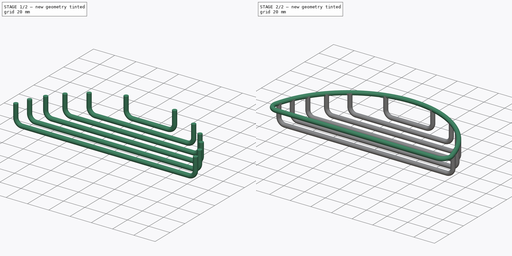
[diagram: build sequence overview — one tinted view per stage of 2, left to right]
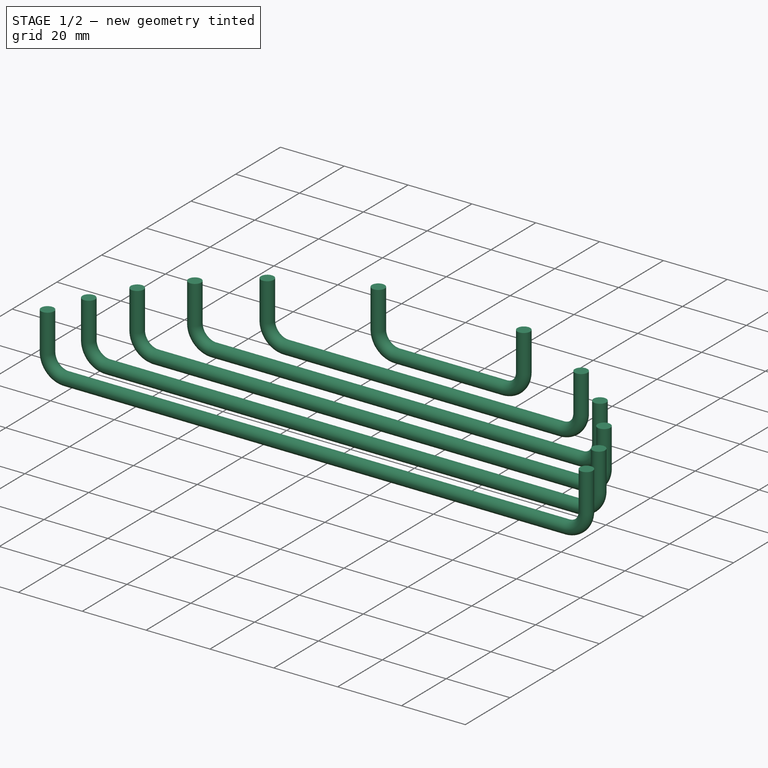
[diagram: stage 1 of 2 — iso view after this stage's code; geometry added in this stage tinted green]
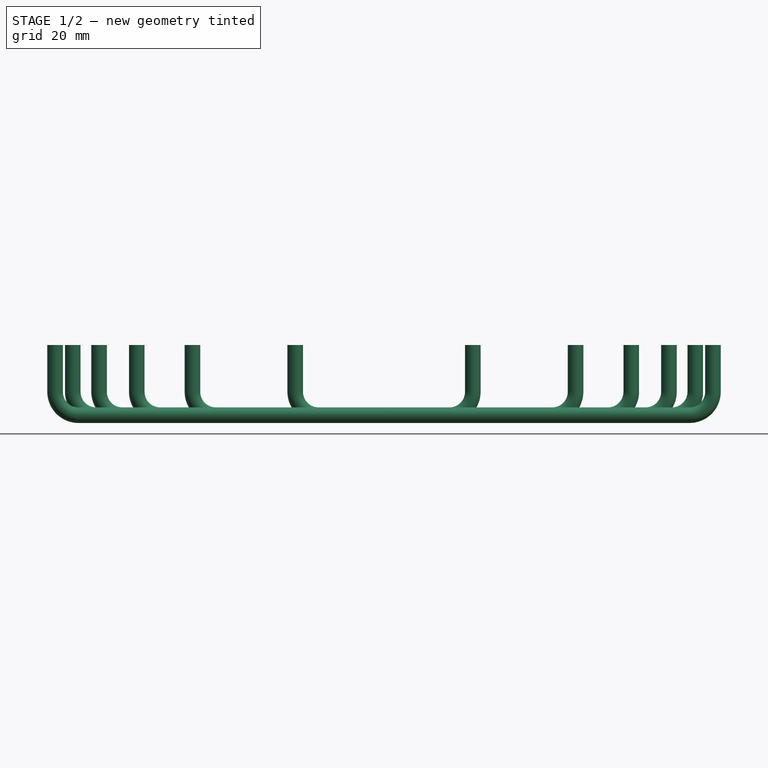
[diagram: stage 1 of 2 — front view after this stage's code; geometry added in this stage tinted green]
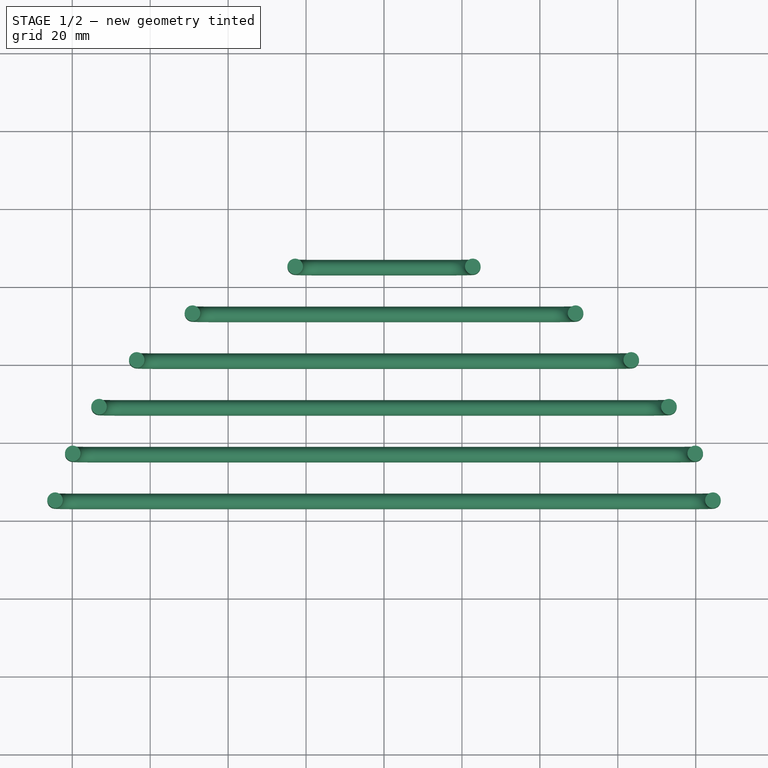
[diagram: stage 1 of 2 — top view after this stage's code; geometry added in this stage tinted green]
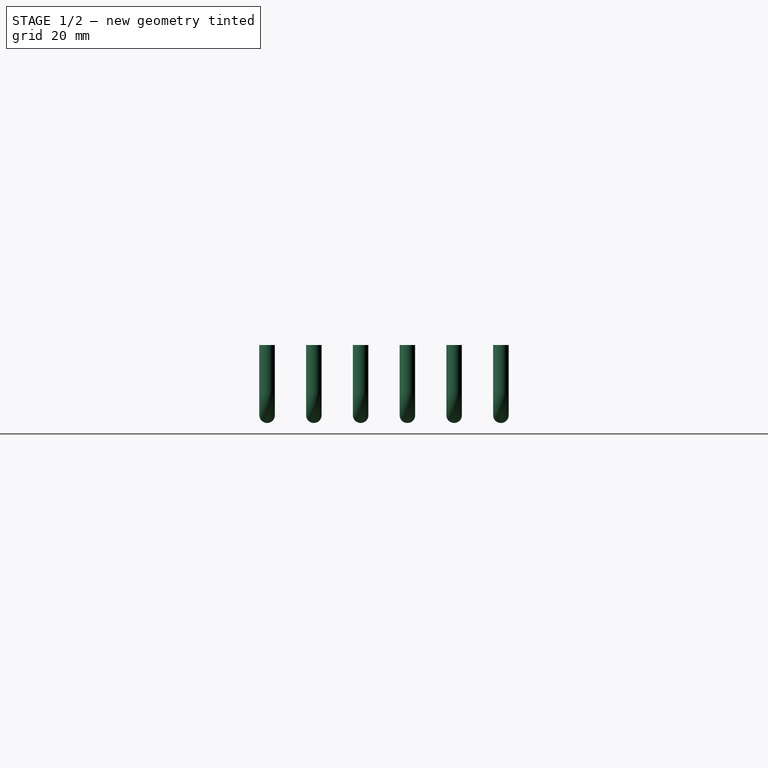
[diagram: stage 1 of 2 — right view after this stage's code; geometry added in this stage tinted green]
FCSTD DOCUMENT  (FreeCAD 1.1R42340 (Git))
Label: 24WC-30-Soapt_Holder
License: Creative Commons Attribution-NonCommercial-ShareAlike 4.0
LicenseURL: https://creativecommons.org/licenses/by-nc-sa/4.0/
objects: Sketcher::SketchObject×5, PartDesign::AdditivePipe×2, App::TextDocument×1, Part::FeaturePython×1, App::Part×1, App::Point×1
note: 17 computed .brp shape members not serialized (recipe doc carries the construction recipe); baked Part::Feature solids carry a one-line shape summary decoded from their .brp

FEATURE [Sketcher::SketchObject] Sketch002
  ArcFitTolerance = 1e-06
  ExternalGeometry = -> [Sketch]
  ExternalTypes = [0,0]
  FullyConstrained = true
  MakeInternals = false
  MapMode = 5
  sketch-geometry (1):
    g0: LineSegment StartX=-76.4871 StartY=23.57 StartZ=0 EndX=76.4871 EndY=23.57 EndZ=0
  constraints (4):
    c: PointOnObject(g0,g-3)
    c: PointOnObject(g0,g-3)
    c: Horizontal(g0)
    c: Distance(g0,g-4) = 31.57  'X'
FEATURE [Sketcher::SketchObject] Sketch003  label="Path"
  ArcFitTolerance = 1e-06
  ExternalGeometry = -> [Sketch002]
  ExternalTypes = [0]
  FullyConstrained = true
  MakeInternals = false
  MapMode = 5
  Placement = pos=(0,23.57,0) rot=(0,0.707107,0.707107;3.14159rad)
  sketch-geometry (13):
    g0: LineSegment StartX=-76.4871 StartY=0 StartZ=0 EndX=-76.4871 EndY=-12 EndZ=0
    g1: ArcOfCircle CenterX=-70.4871 CenterY=-12 CenterZ=0 NormalX=0 NormalY=0 NormalZ=1 AngleXU=0 Radius=6 StartAngle=3.14159 EndAngle=4.71239
    g2: LineSegment StartX=-70.4871 StartY=-18 StartZ=0 EndX=70.4871 EndY=-18 EndZ=0
    g3: ArcOfCircle CenterX=70.4871 CenterY=-12 CenterZ=0 NormalX=0 NormalY=0 NormalZ=1 AngleXU=0 Radius=6 StartAngle=4.71239 EndAngle=6.28319
    g4: LineSegment StartX=76.4871 StartY=-12 StartZ=0 EndX=76.4871 EndY=0 EndZ=0
    g5: LineSegment [constr] StartX=76.4871 StartY=2 StartZ=0 EndX=-76.4871 EndY=2 EndZ=0
    g6: ArcOfCircle [constr] CenterX=-76.4871 CenterY=0 CenterZ=0 NormalX=0 NormalY=0 NormalZ=-1 AngleXU=-1.5708 Radius=2 StartAngle=1.5708 EndAngle=3.14159
    g7: LineSegment [constr] StartX=-78.4871 StartY=0 StartZ=0 EndX=-78.4871 EndY=-12 EndZ=0
    g8: ArcOfCircle [constr] CenterX=-70.4871 CenterY=-12 CenterZ=0 NormalX=0 NormalY=0 NormalZ=1 AngleXU=0 Radius=8 StartAngle=3.14159 EndAngle=4.71239
    g9: LineSegment [constr] StartX=-70.4871 StartY=-20 StartZ=0 EndX=70.4871 EndY=-20 EndZ=0
    g10: ArcOfCircle [constr] CenterX=70.4871 CenterY=-12 CenterZ=0 NormalX=0 NormalY=0 NormalZ=1 AngleXU=0 Radius=8 StartAngle=4.71239 EndAngle=6.28319
    g11: LineSegment [constr] StartX=78.4871 StartY=-12 StartZ=0 EndX=78.4871 EndY=0 EndZ=0
    g12: ArcOfCircle [constr] CenterX=76.4871 CenterY=0 CenterZ=0 NormalX=0 NormalY=0 NormalZ=-1 AngleXU=0 Radius=2 StartAngle=1.5708 EndAngle=3.14159
  constraints (28):
    c: Coincident(g-3,g0)
    c: Vertical(g0)
    c: Tangent(g0,g1) = -1.5708
    c: Tangent(g1,g2) = -1.5708
    c: Tangent(g2,g3) = -1.5708
    c: Tangent(g3,g4) = -1.5708
    c: Horizontal(g2)
    c: Vertical(g4)
    c: Coincident(g4,g-3)
    c: Equal(g3,g1)
    c: Radius(g1) = 6
    c: Tangent(g5,g6) = -1.5708
    c: Tangent(g5,g12) = -1.5708
    c: Tangent(g6,g7) = -1.5708
    c: Tangent(g7,g8) = -1.5708
    c: Tangent(g8,g9) = -1.5708
    c: Tangent(g9,g10) = -1.5708
    c: Tangent(g10,g11) = -1.5708
    c: Tangent(g11,g12) = -1.5708
    c: Coincident(g12,g4)
    c: Parallel(g5,g-3)
    c: Coincident(g6,g0)
    c: Parallel(g7,g0)
    c: Coincident(g8,g1)
    c: Parallel(g9,g2)
    c: Coincident(g10,g3)
    c: Distance(g11,g4) = 2
    c: DistanceY(g9,g5) = 22
FEATURE [Sketcher::SketchObject] Sketch004  label="Lower Profile"
  ArcFitTolerance = 1e-06
  ExternalGeometry = -> [Sketch002]
  ExternalTypes = [0]
  FullyConstrained = true
  MakeInternals = false
  MapMode = 5
  sketch-geometry (1):
    g0: Circle CenterX=-76.4871 CenterY=23.57 CenterZ=0 NormalX=0 NormalY=0 NormalZ=1 AngleXU=0 Radius=2
  constraints (2):
    c: Diameter(g0) = 4
    c: Coincident(g0,g-3)
FEATURE [PartDesign::AdditivePipe] AdditivePipe001  label="Lower Wire"
  AuxiliaryCurvilinear = true
  AuxiliarySpineTangent = false
  Binormal = (0,0,0)
  Mode = 0
  Profile = -> Sketch004
  Refine = true
  Spine = -> Sketch003
  SpineTangent = false
  Suppressed = false
  Transformation = 0
  Transition = 0
FEATURE [App::TextDocument] Text_document  label="README"
  Text = https://www.youtube.com/watch?v=GK-3fxuuU_o&t=207s\n\n7800 kg/m3\n\n.0912 kg but should be \n.129\n\nAs far as I know, there is no easy way in FreeCad to make a series of features by varying a dimension in a sketch, like in SW.\n\nI use Lattice2 Paraseries. \nIt's powerful, but the code is really fragile and be prepared to crash FC several time before finding the right settings.\nIt's really tedious. (NOTE: to be fair, I am using a daily 1.1.0-dev version)\n\nHere is how it works:\n- sketch002 contains the varialble that will be manipulated by the series (X here). X positions the plan of one of the lower wire.\n- the full path of the wire is in the Path sketch, and of course is depending on sktech002\n- the wire is normally created thanks to an aditive pipe\n- and finally, the paraseries clones the this wire, by having X making six step of 12 mm.\n\n  Important Paraseries parameters are:\n  - Object: the body that will be created on each step\n  - Parameter_Ref: the parameter to increase. BEWARE that it seems to be an expression (and actually it is), but you have to enter it as a string, NOT IN THE EXPRESSION EDITOR!\n  - Value_Source: the Generator is used here, but values could comes from a Spreedsheet, or from an hard coded list\n  - Generator_Mode: here its StepN, meaning N time step will be done. N is in "Count" parameter, and step in "Step".\n  - Span_Start (usefull here, because the first wire axis is not at 12mm from the upper wire edged axis, but at 13mm)\n\nNote that I have no idea of how to measure the weight of this object!
FEATURE [Part::FeaturePython] ParaSeries  # WARN: FeaturePython — macro-defined, semantics opaque (R4)
  Alignment = 0
  CellStart = A1
  Count = 6
  DistributionLaw = 0
  EndInclusive = false
  ExposePlacement = false
  GeneratorMode = 1
  MarkerShape = 1
  MarkerSize = 0
  NumElements = 0
  Object = -> AdditivePipe001
  ParameterRef = Sketch002.Constraints.X
  ParameterType = 1
  Recomputing = 2
  SpanEnd = 0
  SpanStart = 13
  Step = 12
  Type = lattice2ParaSeries.LatticeParaSeries
  VSGVersion = 1
  Values = 13.0 | 25.0 | 37.0 | 49.0 | 61.0 | 73.0
  ValuesSource = 2
  isLattice = 0
FEATURE [App::Part] Part
  Group = -> [Sketch,Sketch001,AdditivePipe,Sketch002,Sketch003,Sketch004,AdditivePipe001,ParaSeries]
  Origin = -> Origin002
FEATURE [App::Point] Origin003  label="Origine002"
  Role = Origin
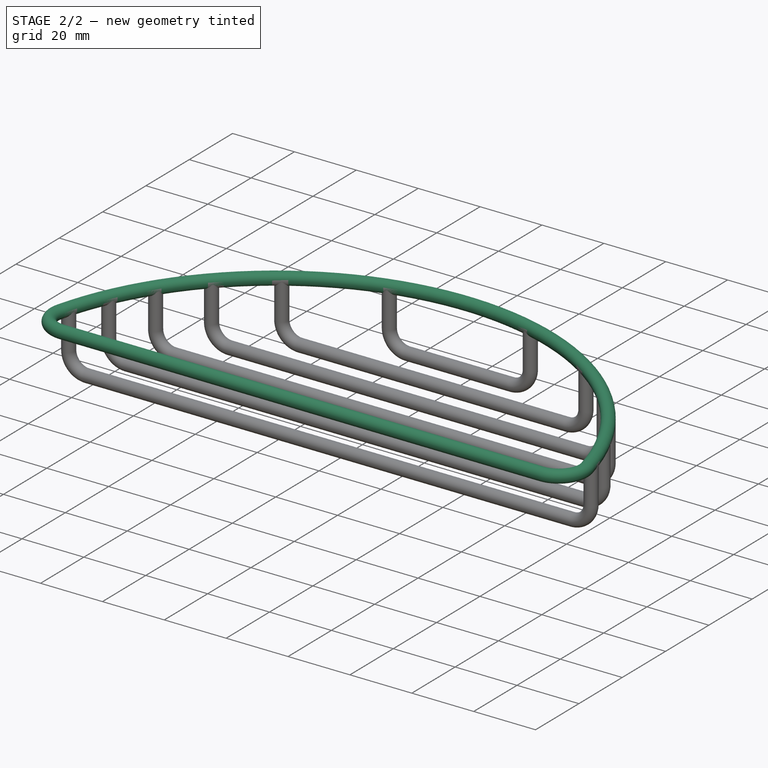
[diagram: stage 2 of 2 — iso view after this stage's code; geometry added in this stage tinted green]
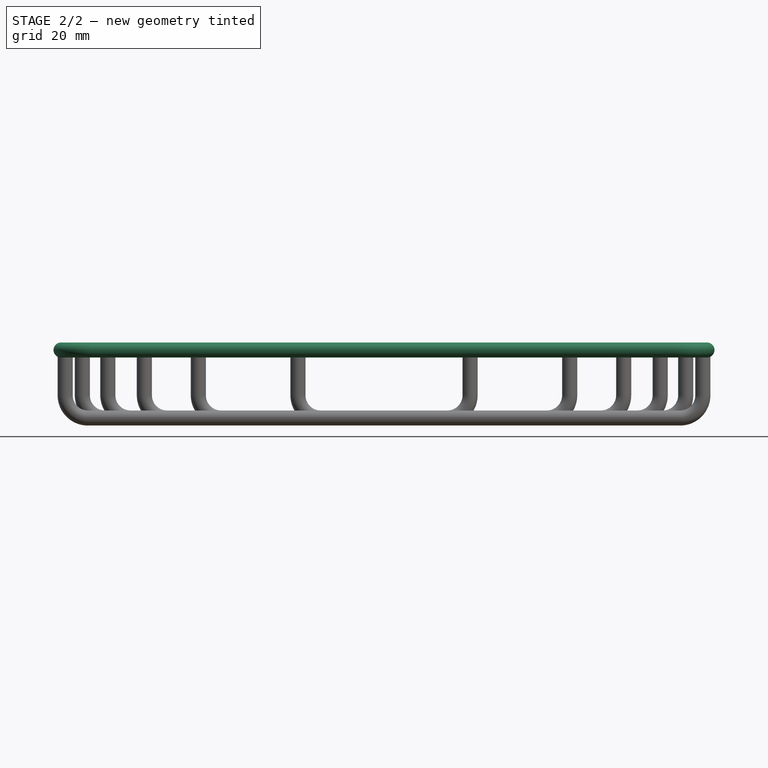
[diagram: stage 2 of 2 — front view after this stage's code; geometry added in this stage tinted green]
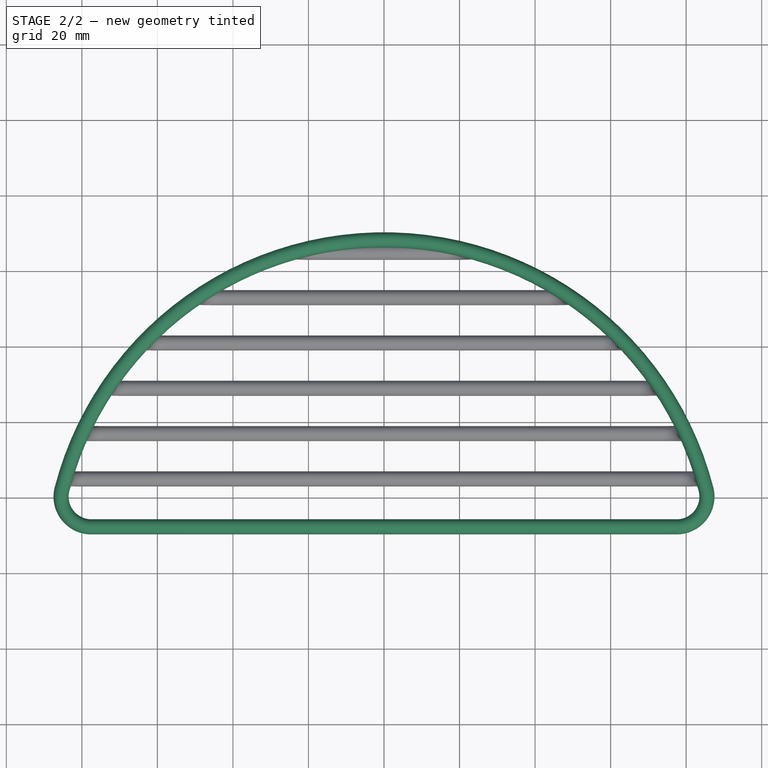
[diagram: stage 2 of 2 — top view after this stage's code; geometry added in this stage tinted green]
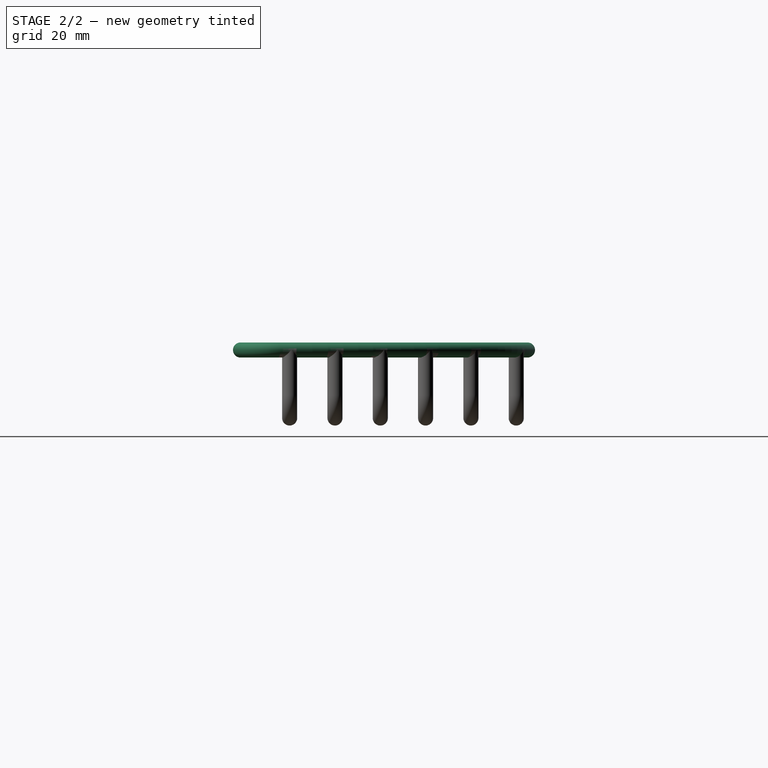
[diagram: stage 2 of 2 — right view after this stage's code; geometry added in this stage tinted green]
FEATURE [Sketcher::SketchObject] Sketch  label="Perimeter"
  ArcFitTolerance = 1e-06
  ExternalTypes = [0]
  FullyConstrained = true
  MakeInternals = false
  MapMode = 5
  sketch-geometry (11):
    g0: LineSegment [constr] StartX=-77.5 StartY=-10 StartZ=0 EndX=77.5 EndY=-10 EndZ=0
    g1: ArcOfCircle [constr] CenterX=77.5 CenterY=0 CenterZ=0 NormalX=0 NormalY=0 NormalZ=1 AngleXU=0 Radius=10 StartAngle=4.71239 EndAngle=6.53637
    g2: ArcOfCircle [constr] CenterX=-2.3e-15 CenterY=-20.0521 CenterZ=0 NormalX=0 NormalY=0 NormalZ=1 AngleXU=0 Radius=90.0521 StartAngle=0.253184 EndAngle=2.88841
    g3: ArcOfCircle [constr] CenterX=-77.5 CenterY=0 CenterZ=0 NormalX=0 NormalY=0 NormalZ=1 AngleXU=0 Radius=10 StartAngle=2.88841 EndAngle=4.71239
    g4: GeomPoint [constr] X=0 Y=70 Z=0
    g5: ArcOfCircle CenterX=-2.3e-15 CenterY=-20.0521 CenterZ=0 NormalX=0 NormalY=0 NormalZ=1 AngleXU=0 Radius=88.0521 StartAngle=0.253184 EndAngle=2.88841
    g6: ArcOfCircle CenterX=77.5 CenterY=0 CenterZ=0 NormalX=0 NormalY=0 NormalZ=1 AngleXU=0 Radius=8 StartAngle=4.71239 EndAngle=6.53637
    g7: LineSegment StartX=77.5 StartY=-8 StartZ=0 EndX=-77.5 EndY=-8 EndZ=0
    g8: ArcOfCircle CenterX=-77.5 CenterY=0 CenterZ=0 NormalX=0 NormalY=0 NormalZ=1 AngleXU=0 Radius=8 StartAngle=2.88841 EndAngle=4.71239
    g9: GeomPoint [constr] X=-87.5 Y=0 Z=0
    g10: GeomPoint [constr] X=87.5 Y=0 Z=0
  constraints (24):
    c: Tangent(g0,g1) = -1.5708
    c: Tangent(g1,g2) = -1.5708
    c: Tangent(g2,g3) = -1.5708
    c: Equal(g3,g1)
    c: Symmetric(g3,g1,g-2)
    c: Radius(g3) = 10
    c: PointOnObject(g4,g2)
    c: PointOnObject(g4,g-2)
    c: Distance(g4,g0) = 80
    c: Coincident(g5,g2)
    c: Tangent(g5,g6) = -1.5708
    c: Tangent(g6,g7) = 1.5708
    c: Distance(g5,g1) = 2
    c: Coincident(g1,g6)
    c: Tangent(g8,g7) = 1.5708
    c: Tangent(g8,g5) = -1.5708
    c: Coincident(g3,g8)
    c: PointOnObject(g3,g-1)
    c: Tangent(g3,g0) = -1.5708
    c: PointOnObject(g9,g3)
    c: PointOnObject(g9,g-1)
    c: PointOnObject(g10,g1)
    c: PointOnObject(g10,g-1)
    c: DistanceX(g9,g10) = 175
FEATURE [Sketcher::SketchObject] Sketch001  label="Upper Profile"
  ArcFitTolerance = 1e-06
  ExternalGeometry = -> [Sketch]
  ExternalTypes = [0]
  FullyConstrained = true
  MakeInternals = false
  MapMode = 5
  Placement = pos=(0,0,0) rot=(0.57735,0.57735,0.57735;2.0944rad)
  sketch-geometry (1):
    g0: Circle CenterX=-8 CenterY=0 CenterZ=0 NormalX=0 NormalY=0 NormalZ=1 AngleXU=0 Radius=2
  constraints (2):
    c: Diameter(g0) = 4
    c: Coincident(g-3,g0)
FEATURE [PartDesign::AdditivePipe] AdditivePipe  label="Upper Wire"
  AuxiliaryCurvilinear = true
  AuxiliarySpineTangent = false
  Binormal = (0,0,0)
  Mode = 0
  Placement = pos=(0,0,0) rot=(0.57735,0.57735,0.57735;2.0944rad)
  Profile = -> Sketch001
  Refine = true
  Spine = -> Sketch
  SpineTangent = false
  Suppressed = false
  Transformation = 0
  Transition = 0
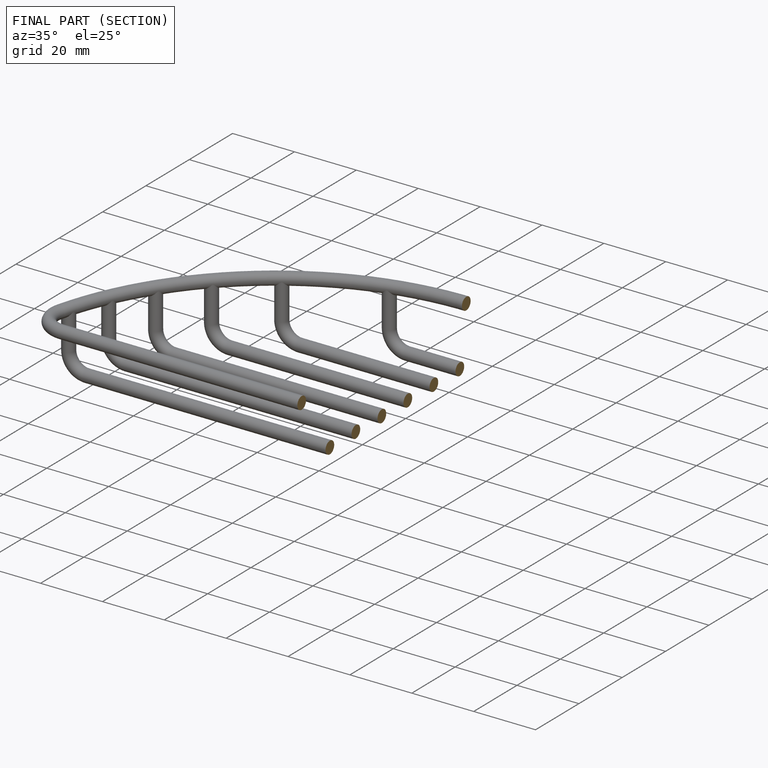
[diagram: finished part — half-section view (interior)]
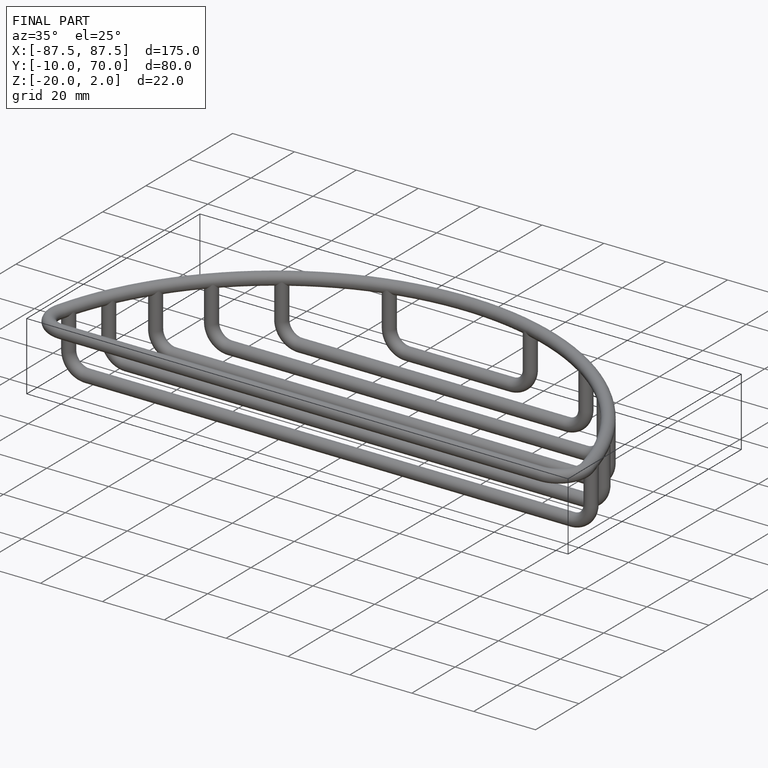
[diagram: finished part — iso view with bounding-box wireframe]
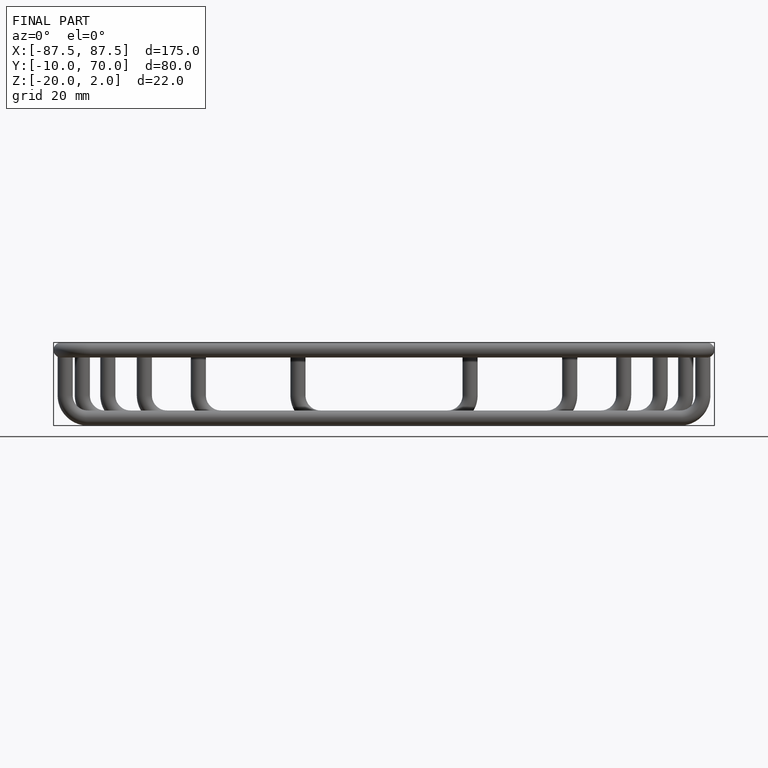
[diagram: finished part — front view with bounding-box wireframe]
